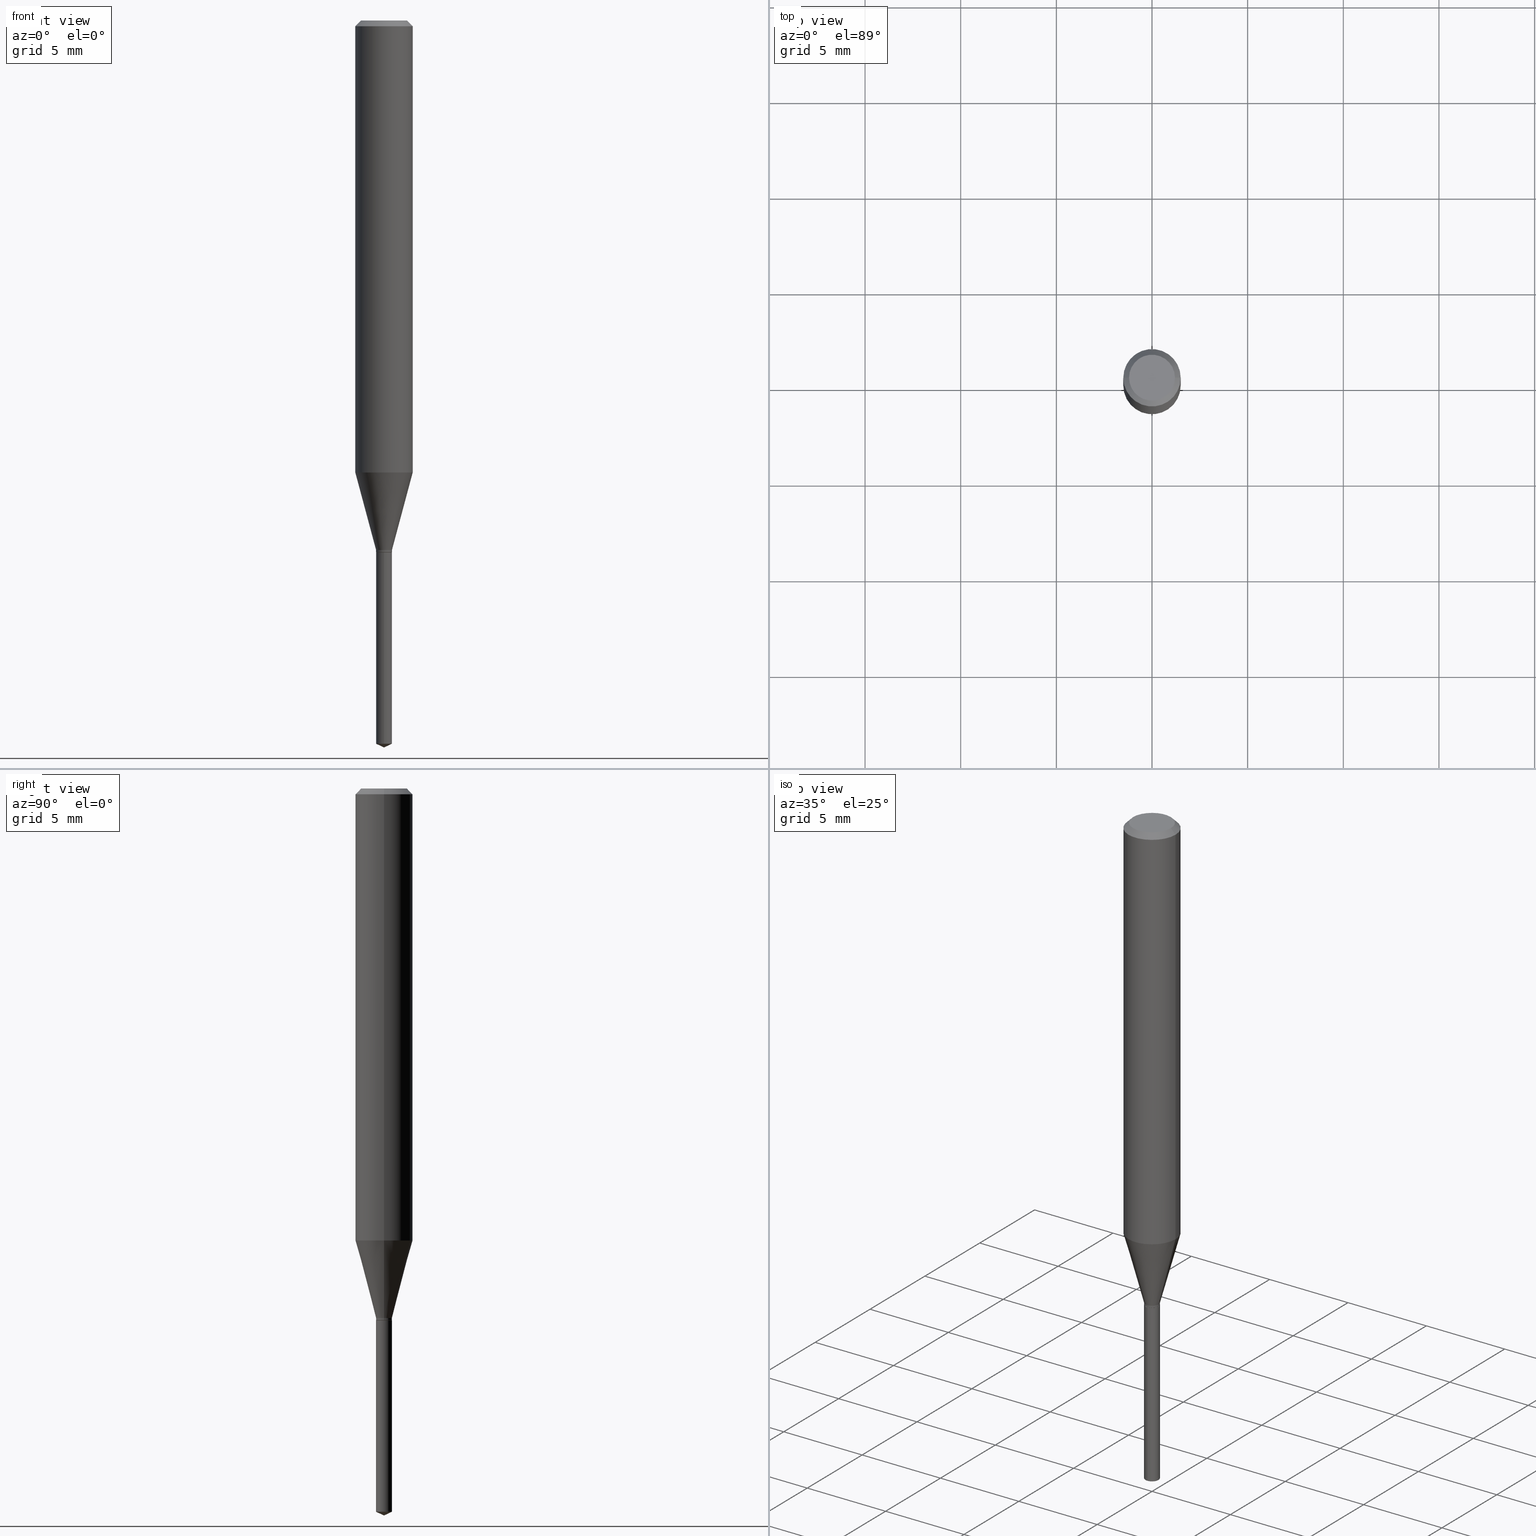
[diagram: canonical four-view strip — front | top / right | iso, engineering-drawing reading convention]
A machine part, canonical four-view strip (front | top / right | iso — engineering-drawing reading convention). The complete STEP part file that produces these views, byte-faithful:
ISO-10303-21;
HEADER;
FILE_DESCRIPTION (( 'STEP AP203' ),
    '1' );
FILE_NAME ('08126.STEP',
    '2024-04-24T12:21:54',
    ( '' ),
    ( '' ),
    'SwSTEP 2.0',
    'SolidWorks 2023',
    '' );
FILE_SCHEMA (( 'CONFIG_CONTROL_DESIGN' ));
ENDSEC;

DATA;
#1 = EDGE_CURVE ( 'NONE', #224, #394, #177, .T. ) ;
#2 = CARTESIAN_POINT ( 'NONE',  ( -0.01584999999999999951, -3.706156074571735474E-15, -1.094500000000000028 ) ) ;
#3 = CARTESIAN_POINT ( 'NONE',  ( 0.05905000000000010935, -3.660264541385565561E-15, -0.9302414305168089648 ) ) ;
#4 = VECTOR ( 'NONE', #127, 39.37007874015748143 ) ;
#5 = APPROVAL_DATE_TIME ( #424, #60 ) ;
#6 = CARTESIAN_POINT ( 'NONE',  ( 2.675342873966538993E-29, -3.819680584694400481E-15, -1.093999999999999861 ) ) ;
#7 = EDGE_CURVE ( 'NONE', #207, #450, #404, .T. ) ;
#8 = PERSON_AND_ORGANIZATION_ROLE ( 'design_supplier' ) ;
#9 = ORIENTED_EDGE ( 'NONE', *, *, #90, .F. ) ;
#10 = ORIENTED_EDGE ( 'NONE', *, *, #69, .T. ) ;
#11 = ORIENTED_EDGE ( 'NONE', *, *, #383, .F. ) ;
#12 = CIRCLE ( 'NONE', #214, 0.04724000000000000421 ) ;
#13 = SHAPE_DEFINITION_REPRESENTATION ( #310, #227 ) ;
#14 = DIRECTION ( 'NONE',  ( -6.328713451373386733E-15, -0.9063077870366508249, 0.4226182617406975539 ) ) ;
#15 = EDGE_LOOP ( 'NONE', ( #54, #438, #294, #364 ) ) ;
#16 = APPROVAL ( #427, 'UNSPECIFIED' ) ;
#17 = LINE ( 'NONE', #279, #449 ) ;
#18 = ORIENTED_EDGE ( 'NONE', *, *, #414, .F. ) ;
#19 = ORIENTED_EDGE ( 'NONE', *, *, #370, .F. ) ;
#20 = APPLICATION_CONTEXT ( 'configuration controlled 3d designs of mechanical parts and assemblies' ) ;
#21 = DIRECTION ( 'NONE',  ( 1.000000000000000000, -6.982962677686270655E-15, 0.000000000000000000 ) ) ;
#22 = ORIENTED_EDGE ( 'NONE', *, *, #483, .T. ) ;
#23 = AXIS2_PLACEMENT_3D ( 'NONE', #137, #324, #74 ) ;
#24 = DIRECTION ( 'NONE',  ( -2.445468806185136597E-29, 3.491481338843145583E-15, 1.000000000000000000 ) ) ;
#25 = PRODUCT_RELATED_PRODUCT_CATEGORY ( 'detail', '', ( #388 ) ) ;
#26 = ORIENTED_EDGE ( 'NONE', *, *, #231, .T. ) ;
#27 = DIRECTION ( 'NONE',  ( -2.445468806185136597E-29, 3.491481338843145583E-15, 1.000000000000000000 ) ) ;
#28 = DIRECTION ( 'NONE',  ( -2.445468806185136597E-29, 3.491481338843145583E-15, 1.000000000000000000 ) ) ;
#29 = VECTOR ( 'NONE', #353, 39.37007874015747433 ) ;
#30 = CARTESIAN_POINT ( 'NONE',  ( 2.888098660104663328E-31, -4.123439461173779030E-17, -0.01181000000000006871 ) ) ;
#31 = CIRCLE ( 'NONE', #220, 0.04724000000000000421 ) ;
#32 = EDGE_CURVE ( 'NONE', #44, #183, #385, .T. ) ;
#33 = CARTESIAN_POINT ( 'NONE',  ( 8.265746106709734507E-48, -1.180129479067563789E-33, -3.380025165646692144E-19 ) ) ;
#34 = VERTEX_POINT ( 'NONE', #121 ) ;
#35 = ORIENTED_EDGE ( 'NONE', *, *, #182, .F. ) ;
#36 = CARTESIAN_POINT ( 'NONE',  ( -0.01634999999999999995, -3.688144329506715042E-15, -1.089600000000000124 ) ) ;
#37 = DIRECTION ( 'NONE',  ( -2.445468806185136877E-29, 3.491481338843145188E-15, 1.000000000000000000 ) ) ;
#38 = ORIENTED_EDGE ( 'NONE', *, *, #470, .T. ) ;
#39 = CIRCLE ( 'NONE', #23, 0.05905000000000010935 ) ;
#40 = CC_DESIGN_PERSON_AND_ORGANIZATION_ASSIGNMENT ( #311, #352, ( #221 ) ) ;
#41 = APPLICATION_PROTOCOL_DEFINITION ( 'international standard', 'config_control_design', 1994, #331 ) ;
#42 = DIRECTION ( 'NONE',  ( -2.445468806185136597E-29, 3.491481338843145583E-15, 1.000000000000000000 ) ) ;
#43 = DIRECTION ( 'NONE',  ( -2.445460715294871217E-29, 3.491492925458510144E-15, 1.000000000000000000 ) ) ;
#44 = VERTEX_POINT ( 'NONE', #49 ) ;
#45 = CALENDAR_DATE ( 2024, 24, 4 ) ;
#46 = CC_DESIGN_PERSON_AND_ORGANIZATION_ASSIGNMENT ( #236, #8, ( #187 ) ) ;
#47 = LINE ( 'NONE', #277, #327 ) ;
#48 = CIRCLE ( 'NONE', #358, 0.05905000000000010935 ) ;
#49 = CARTESIAN_POINT ( 'NONE',  ( 1.161737372968127416E-16, 0.01634999999999479925, -1.488475869789165795 ) ) ;
#50 = DESIGN_CONTEXT ( 'detailed design', #331, 'design' ) ;
#51 = LINE ( 'NONE', #240, #29 ) ;
#52 = DIRECTION ( 'NONE',  ( 1.000000000000000000, -6.982962677686269077E-15, 0.000000000000000000 ) ) ;
#53 = CIRCLE ( 'NONE', #395, 0.01634999999999999995 ) ;
#54 = ORIENTED_EDGE ( 'NONE', *, *, #96, .F. ) ;
#55 = LOCAL_TIME ( 8, 21, 54.00000000000000000, #193 ) ;
#56 = DIRECTION ( 'NONE',  ( 2.438088387897960049E-29, -3.491481338843145188E-15, -1.000000000000000000 ) ) ;
#57 = ORIENTED_EDGE ( 'NONE', *, *, #175, .T. ) ;
#58 = CARTESIAN_POINT ( 'NONE',  ( 2.664582811219324806E-29, -3.804318066803491249E-15, -1.089600000000000124 ) ) ;
#59 = VERTEX_POINT ( 'NONE', #418 ) ;
#60 = APPROVAL ( #422, 'UNSPECIFIED' ) ;
#61 = FACE_OUTER_BOUND ( 'NONE', #185, .T. ) ;
#62 = ORIENTED_EDGE ( 'NONE', *, *, #208, .F. ) ;
#63 = ORIENTED_EDGE ( 'NONE', *, *, #370, .T. ) ;
#64 = AXIS2_PLACEMENT_3D ( 'NONE', #234, #113, #302 ) ;
#65 = DIRECTION ( 'NONE',  ( -2.445468806185136597E-29, 3.491481338843145583E-15, 1.000000000000000000 ) ) ;
#66 = DIRECTION ( 'NONE',  ( -6.982962677686265922E-15, -1.000000000000000000, 0.000000000000000000 ) ) ;
#67 = VERTEX_POINT ( 'NONE', #2 ) ;
#68 = DIRECTION ( 'NONE',  ( 6.982962677686265922E-15, 1.000000000000000000, -3.491492925458510144E-15 ) ) ;
#69 = EDGE_CURVE ( 'NONE', #394, #145, #51, .T. ) ;
#70 = DIRECTION ( 'NONE',  ( -2.445468806185136597E-29, 3.491481338843145583E-15, 1.000000000000000000 ) ) ;
#71 = AXIS2_PLACEMENT_3D ( 'NONE', #105, #176, #260 ) ;
#72 = VERTEX_POINT ( 'NONE', #160 ) ;
#73 = VERTEX_POINT ( 'NONE', #200 ) ;
#74 = DIRECTION ( 'NONE',  ( 1.000000000000000000, -6.982962677686267499E-15, 0.000000000000000000 ) ) ;
#75 = ORIENTED_EDGE ( 'NONE', *, *, #462, .F. ) ;
#76 = CARTESIAN_POINT ( 'NONE',  ( 0.01634999999999999648, -3.933852024474571547E-15, -1.093999999999999861 ) ) ;
#77 = DIRECTION ( 'NONE',  ( -1.000000000000000000, 6.982962677686266711E-15, 0.000000000000000000 ) ) ;
#78 = AXIS2_PLACEMENT_3D ( 'NONE', #58, #209, #98 ) ;
#79 = COORDINATED_UNIVERSAL_TIME_OFFSET ( 5, 0, .BEHIND. ) ;
#80 = DIRECTION ( 'NONE',  ( -0.7071067811865453523, 2.468850131082234184E-15, -0.7071067811865496822 ) ) ;
#81 = ORIENTED_EDGE ( 'NONE', *, *, #362, .F. ) ;
#82 = APPROVAL_ROLE ( '' ) ;
#83 = DIRECTION ( 'NONE',  ( -6.982962677686265922E-15, -1.000000000000000000, 0.000000000000000000 ) ) ;
#84 = PERSON_AND_ORGANIZATION_ROLE ( 'creator' ) ;
#85 = LINE ( 'NONE', #303, #256 ) ;
#86 = CLOSED_SHELL ( 'NONE', ( #146, #447, #428, #111, #398 ) ) ;
#87 = AXIS2_PLACEMENT_3D ( 'NONE', #89, #65, #133 ) ;
#88 = DIRECTION ( 'NONE',  ( -6.982962677686265922E-15, -1.000000000000000000, 0.000000000000000000 ) ) ;
#89 = CARTESIAN_POINT ( 'NONE',  ( 0.000000000000000000, 0.000000000000000000, 0.000000000000000000 ) ) ;
#90 = EDGE_CURVE ( 'NONE', #67, #402, #194, .T. ) ;
#91 = DATE_TIME_ROLE ( 'classification_date' ) ;
#92 = DIRECTION ( 'NONE',  ( -2.445460715294871217E-29, 3.491492925458510144E-15, 1.000000000000000000 ) ) ;
#93 = VECTOR ( 'NONE', #37, 39.37007874015748143 ) ;
#94 = PLANE ( 'NONE',  #148 ) ;
#95 = ORIENTED_EDGE ( 'NONE', *, *, #476, .F. ) ;
#96 = EDGE_CURVE ( 'NONE', #207, #224, #47, .T. ) ;
#97 = COORDINATED_UNIVERSAL_TIME_OFFSET ( 5, 0, .BEHIND. ) ;
#98 = DIRECTION ( 'NONE',  ( 1.000000000000000000, -6.982962677686270655E-15, 0.000000000000000000 ) ) ;
#99 = EDGE_LOOP ( 'NONE', ( #81, #471, #10, #334 ) ) ;
#100 = DIMENSIONAL_EXPONENTS ( 1.000000000000000000, 0.000000000000000000, 0.000000000000000000, 0.000000000000000000, 0.000000000000000000, 0.000000000000000000, 0.000000000000000000 ) ;
#101 = DIRECTION ( 'NONE',  ( -2.445468806185136877E-29, 3.491481338843145188E-15, 1.000000000000000000 ) ) ;
#102 = ORIENTED_EDGE ( 'NONE', *, *, #156, .T. ) ;
#103 = AXIS2_PLACEMENT_3D ( 'NONE', #354, #230, #88 ) ;
#104 = APPROVAL_PERSON_ORGANIZATION ( #241, #60, #82 ) ;
#105 = CARTESIAN_POINT ( 'NONE',  ( 2.888098660104663328E-31, -4.123439461173779030E-17, -0.01181000000000006871 ) ) ;
#106 = DIRECTION ( 'NONE',  ( -0.2588190451025213501, 5.211531920934551042E-15, 0.9659258262890682012 ) ) ;
#107 = CC_DESIGN_PERSON_AND_ORGANIZATION_ASSIGNMENT ( #159, #84, ( #187 ) ) ;
#108 = PLANE ( 'NONE',  #432 ) ;
#109 = FACE_OUTER_BOUND ( 'NONE', #270, .T. ) ;
#110 = AXIS2_PLACEMENT_3D ( 'NONE', #326, #410, #376 ) ;
#111 = ADVANCED_FACE ( 'NONE', ( #233 ), #114, .T. ) ;
#112 = CARTESIAN_POINT ( 'NONE',  ( 0.01584999999999999951, -3.932106283805150044E-15, -1.094500000000000028 ) ) ;
#113 = DIRECTION ( 'NONE',  ( 0.000000000000000000, 0.000000000000000000, 1.000000000000000000 ) ) ;
#114 = CYLINDRICAL_SURFACE ( 'NONE', #103, 0.01634999999999999995 ) ;
#115 = APPROVAL_ROLE ( '' ) ;
#116 = AXIS2_PLACEMENT_3D ( 'NONE', #163, #42, #350 ) ;
#117 = APPROVAL_PERSON_ORGANIZATION ( #243, #199, #245 ) ;
#118 = EDGE_LOOP ( 'NONE', ( #325, #38, #123, #62 ) ) ;
#119 = CYLINDRICAL_SURFACE ( 'NONE', #202, 0.01634999999999999995 ) ;
#120 = ADVANCED_FACE ( 'NONE', ( #242 ), #339, .T. ) ;
#121 = CARTESIAN_POINT ( 'NONE',  ( 0.05904999999999999832, -4.535783407291118600E-16, -0.01181000000000006871 ) ) ;
#122 = DIRECTION ( 'NONE',  ( -0.7071067811864237829, 7.493145998869907665E-15, 0.7071067811866712516 ) ) ;
#123 = ORIENTED_EDGE ( 'NONE', *, *, #462, .T. ) ;
#124 = CONICAL_SURFACE ( 'NONE', #486, 0.01634999999999999995, 0.2617993877991500740 ) ;
#125 = ORGANIZATION ( 'UNSPECIFIED', 'UNSPECIFIED', '' ) ;
#126 = EDGE_CURVE ( 'NONE', #317, #59, #381, .T. ) ;
#127 = DIRECTION ( 'NONE',  ( -2.445468806185136877E-29, 3.491481338843145188E-15, 1.000000000000000000 ) ) ;
#128 = CARTESIAN_POINT ( 'NONE',  ( -0.01634999999999999995, -3.695825588452169658E-15, -1.089600000000000124 ) ) ;
#129 = FACE_OUTER_BOUND ( 'NONE', #342, .T. ) ;
#130 = EDGE_CURVE ( 'NONE', #205, #73, #85, .T. ) ;
#131 = EDGE_LOOP ( 'NONE', ( #434, #271, #406, #298 ) ) ;
#132 = CIRCLE ( 'NONE', #299, 0.01634999999999999995 ) ;
#133 = DIRECTION ( 'NONE',  ( 1.000000000000000000, -6.982962677686266711E-15, 4.876176775795935793E-29 ) ) ;
#134 = ORIENTED_EDGE ( 'NONE', *, *, #355, .F. ) ;
#135 = CARTESIAN_POINT ( 'NONE',  ( 2.664582811219324806E-29, -3.804318066803491249E-15, -1.089600000000000124 ) ) ;
#136 = ORIENTED_EDGE ( 'NONE', *, *, #453, .T. ) ;
#137 = CARTESIAN_POINT ( 'NONE',  ( 2.274876400549894550E-29, -3.247920595268191429E-15, -0.9302414305168089648 ) ) ;
#138 = ORIENTED_EDGE ( 'NONE', *, *, #408, .F. ) ;
#139 = VECTOR ( 'NONE', #389, 39.37007874015748143 ) ;
#140 = AXIS2_PLACEMENT_3D ( 'NONE', #218, #28, #485 ) ;
#141 = EDGE_CURVE ( 'NONE', #72, #44, #382, .T. ) ;
#142 = DIRECTION ( 'NONE',  ( 1.000000000000000000, -6.982962677686267499E-15, 0.000000000000000000 ) ) ;
#143 = CARTESIAN_POINT ( 'NONE',  ( 0.01584999999999999951, -3.932106283805150044E-15, -1.094500000000000028 ) ) ;
#144 = DIRECTION ( 'NONE',  ( -6.982962677686266711E-15, -1.000000000000000000, 3.520397390770418371E-15 ) ) ;
#145 = VERTEX_POINT ( 'NONE', #3 ) ;
#146 = ADVANCED_FACE ( 'NONE', ( #158 ), #119, .T. ) ;
#147 = CC_DESIGN_APPROVAL ( #199, ( #379 ) ) ;
#148 = AXIS2_PLACEMENT_3D ( 'NONE', #401, #56, #323 ) ;
#149 = CARTESIAN_POINT ( 'NONE',  ( -9.261931828548885815E-28, 1.322367415117763772E-13, 37.87397874015748300 ) ) ;
#150 = COORDINATED_UNIVERSAL_TIME_OFFSET ( 5, 0, .BEHIND. ) ;
#151 = MECHANICAL_CONTEXT ( 'NONE', #20, 'mechanical' ) ;
#152 = DIRECTION ( 'NONE',  ( -2.445460715294871217E-29, 3.491492925458510144E-15, 1.000000000000000000 ) ) ;
#153 = MANIFOLD_SOLID_BREP ( 'Body-Move/Copy2[1]', #86 ) ;
#154 =( NAMED_UNIT ( * ) PLANE_ANGLE_UNIT ( ) SI_UNIT ( $, .RADIAN. ) );
#155 = VECTOR ( 'NONE', #152, 39.37007874015748143 ) ;
#156 = EDGE_CURVE ( 'NONE', #72, #317, #235, .T. ) ;
#157 = CIRCLE ( 'NONE', #291, 0.01634999999999999648 ) ;
#158 = FACE_OUTER_BOUND ( 'NONE', #180, .T. ) ;
#159 = PERSON_AND_ORGANIZATION ( #351, #125 ) ;
#160 = CARTESIAN_POINT ( 'NONE',  ( 3.658653776152655930E-29, -5.223622565778476142E-15, -1.496099999999999985 ) ) ;
#161 = EDGE_LOOP ( 'NONE', ( #63, #26, #18, #75 ) ) ;
#162 = EDGE_CURVE ( 'NONE', #317, #44, #212, .T. ) ;
#163 = CARTESIAN_POINT ( 'NONE',  ( 2.664582811219324806E-29, -3.804318066803491249E-15, -1.089600000000000124 ) ) ;
#164 = LOCAL_TIME ( 8, 21, 54.00000000000000000, #150 ) ;
#165 = DIRECTION ( 'NONE',  ( -2.445468806185136597E-29, 3.491481338843145583E-15, 1.000000000000000000 ) ) ;
#166 = CARTESIAN_POINT ( 'NONE',  ( 3.640018120713164370E-29, -5.196990287534057900E-15, -1.488475869789165795 ) ) ;
#167 = EDGE_LOOP ( 'NONE', ( #223, #169, #335, #391 ) ) ;
#168 = FACE_OUTER_BOUND ( 'NONE', #15, .T. ) ;
#169 = ORIENTED_EDGE ( 'NONE', *, *, #338, .T. ) ;
#170 = CIRCLE ( 'NONE', #465, 0.05904999999999999832 ) ;
#171 = CARTESIAN_POINT ( 'NONE',  ( 2.676565608369631794E-29, -3.821426325363822773E-15, -1.094499999999999806 ) ) ;
#172 = ORIENTED_EDGE ( 'NONE', *, *, #141, .F. ) ;
#173 = DIRECTION ( 'NONE',  ( -2.445460715294871217E-29, 3.491492925458510144E-15, 1.000000000000000000 ) ) ;
#174 = ORIENTED_EDGE ( 'NONE', *, *, #362, .T. ) ;
#175 = EDGE_CURVE ( 'NONE', #394, #224, #53, .T. ) ;
#176 = DIRECTION ( 'NONE',  ( 2.445468806185136597E-29, -3.491481338843145583E-15, -1.000000000000000000 ) ) ;
#177 = CIRCLE ( 'NONE', #116, 0.01634999999999999995 ) ;
#178 = LOCAL_TIME ( 8, 21, 54.00000000000000000, #97 ) ;
#179 = DIRECTION ( 'NONE',  ( 0.7071067811864237829, -2.468850131080960568E-15, 0.7071067811866712516 ) ) ;
#180 = EDGE_LOOP ( 'NONE', ( #441, #284, #35, #367 ) ) ;
#181 = DIRECTION ( 'NONE',  ( -2.445468806185136597E-29, 3.491481338843145583E-15, 1.000000000000000000 ) ) ;
#182 = EDGE_CURVE ( 'NONE', #59, #183, #247, .T. ) ;
#183 = VERTEX_POINT ( 'NONE', #440 ) ;
#184 = DIRECTION ( 'NONE',  ( -2.445468806185136597E-29, 3.491481338843145583E-15, 1.000000000000000000 ) ) ;
#185 = EDGE_LOOP ( 'NONE', ( #322, #136 ) ) ;
#186 = PERSON_AND_ORGANIZATION_ROLE ( 'classification_officer' ) ;
#187 = PRODUCT_DEFINITION_FORMATION_WITH_SPECIFIED_SOURCE ( 'ANY', '', #388, .NOT_KNOWN. ) ;
#188 = CARTESIAN_POINT ( 'NONE',  ( -0.01584999999999999951, -3.708805301745847464E-15, -1.094500000000000028 ) ) ;
#189 = CARTESIAN_POINT ( 'NONE',  ( 1.161737372968031274E-16, 0.01634999999999617662, -1.094499999999999806 ) ) ;
#190 = ADVANCED_FACE ( 'NONE', ( #400 ), #124, .T. ) ;
#191 = DIRECTION ( 'NONE',  ( -6.982962677686265922E-15, -1.000000000000000000, 0.000000000000000000 ) ) ;
#192 = CARTESIAN_POINT ( 'NONE',  ( 3.658671642415649744E-29, -5.223597202677443246E-15, -1.496099999999999985 ) ) ;
#193 = COORDINATED_UNIVERSAL_TIME_OFFSET ( 5, 0, .BEHIND. ) ;
#194 = CIRCLE ( 'NONE', #304, 0.01584999999999999951 ) ;
#195 = VECTOR ( 'NONE', #179, 39.37007874015748143 ) ;
#196 = CARTESIAN_POINT ( 'NONE',  ( 3.658653776152657051E-29, -5.223622565778476142E-15, -1.496099999999999985 ) ) ;
#197 =( NAMED_UNIT ( * ) SI_UNIT ( $, .STERADIAN. ) SOLID_ANGLE_UNIT ( ) );
#198 = ORIENTED_EDGE ( 'NONE', *, *, #7, .F. ) ;
#199 = APPROVAL ( #254, 'UNSPECIFIED' ) ;
#200 = CARTESIAN_POINT ( 'NONE',  ( -0.05904999999999999832, -1.225002009473624692E-15, -0.01181000000000006871 ) ) ;
#201 = FACE_OUTER_BOUND ( 'NONE', #118, .T. ) ;
#202 = AXIS2_PLACEMENT_3D ( 'NONE', #309, #425, #83 ) ;
#203 = AXIS2_PLACEMENT_3D ( 'NONE', #461, #266, #77 ) ;
#204 = CONICAL_SURFACE ( 'NONE', #283, 0.01584999999999999951, 0.7853981633972733079 ) ;
#205 = VERTEX_POINT ( 'NONE', #255 ) ;
#206 = DIRECTION ( 'NONE',  ( -2.445468806185136597E-29, 3.491481338843145583E-15, 1.000000000000000000 ) ) ;
#207 = VERTEX_POINT ( 'NONE', #314 ) ;
#208 = EDGE_CURVE ( 'NONE', #73, #34, #411, .T. ) ;
#209 = DIRECTION ( 'NONE',  ( -2.445468806185136597E-29, 3.491481338843145583E-15, 1.000000000000000000 ) ) ;
#210 = EDGE_LOOP ( 'NONE', ( #490, #332, #11, #488 ) ) ;
#211 = DIRECTION ( 'NONE',  ( -6.982962677686265922E-15, -1.000000000000000000, 0.000000000000000000 ) ) ;
#212 = CIRCLE ( 'NONE', #267, 0.01634999999999999995 ) ;
#213 = ORIENTED_EDGE ( 'NONE', *, *, #295, .F. ) ;
#214 = AXIS2_PLACEMENT_3D ( 'NONE', #430, #206, #363 ) ;
#215 = CARTESIAN_POINT ( 'NONE',  ( 0.01634999999999999648, -1.141714397801704256E-16, 7.972549028426353368E-31 ) ) ;
#216 = CC_DESIGN_PERSON_AND_ORGANIZATION_ASSIGNMENT ( #390, #186, ( #379 ) ) ;
#217 = ORIENTED_EDGE ( 'NONE', *, *, #355, .T. ) ;
#218 = CARTESIAN_POINT ( 'NONE',  ( 2.676565608369632355E-29, -3.821426325363822773E-15, -1.094500000000000028 ) ) ;
#219 = DIRECTION ( 'NONE',  ( -2.445468806185136597E-29, 3.491481338843145583E-15, 1.000000000000000000 ) ) ;
#220 = AXIS2_PLACEMENT_3D ( 'NONE', #33, #181, #484 ) ;
#221 = PRODUCT_DEFINITION ( 'UNKNOWN', '', #187, #50 ) ;
#222 = DIRECTION ( 'NONE',  ( 0.7071067811865453523, -7.319954787623248157E-15, -0.7071067811865496822 ) ) ;
#223 = ORIENTED_EDGE ( 'NONE', *, *, #453, .F. ) ;
#224 = VERTEX_POINT ( 'NONE', #128 ) ;
#225 = CARTESIAN_POINT ( 'NONE',  ( 2.274876400549894550E-29, -3.247920595268191429E-15, -0.9302414305168089648 ) ) ;
#226 = ORIENTED_EDGE ( 'NONE', *, *, #483, .F. ) ;
#227 = ADVANCED_BREP_SHAPE_REPRESENTATION ( '08126', ( #153, #315, #64 ), #487 ) ;
#228 = CARTESIAN_POINT ( 'NONE',  ( 0.05905000000000005383, -4.123439461173744271E-16, 2.879382386107502672E-30 ) ) ;
#229 = CARTESIAN_POINT ( 'NONE',  ( 3.640018120713164370E-29, -5.196990287534057900E-15, -1.488475869789165795 ) ) ;
#230 = DIRECTION ( 'NONE',  ( -2.445460715294871217E-29, 3.491492925458510144E-15, 1.000000000000000000 ) ) ;
#231 = EDGE_CURVE ( 'NONE', #416, #73, #17, .T. ) ;
#232 = DATE_TIME_ROLE ( 'creation_date' ) ;
#233 = FACE_OUTER_BOUND ( 'NONE', #288, .T. ) ;
#234 = CARTESIAN_POINT ( 'NONE',  ( 0.000000000000000000, 0.000000000000000000, 0.000000000000000000 ) ) ;
#235 = LINE ( 'NONE', #196, #479 ) ;
#236 = PERSON_AND_ORGANIZATION ( #351, #125 ) ;
#237 = ADVANCED_FACE ( 'NONE', ( #129 ), #261, .T. ) ;
#238 = AXIS2_PLACEMENT_3D ( 'NONE', #281, #27, #52 ) ;
#239 = AXIS2_PLACEMENT_3D ( 'NONE', #446, #374, #417 ) ;
#240 = CARTESIAN_POINT ( 'NONE',  ( 0.01634999999999999995, -3.918489506583662316E-15, -1.089600000000000124 ) ) ;
#241 = PERSON_AND_ORGANIZATION ( #351, #125 ) ;
#242 = FACE_OUTER_BOUND ( 'NONE', #167, .T. ) ;
#243 = PERSON_AND_ORGANIZATION ( #351, #125 ) ;
#244 = CYLINDRICAL_SURFACE ( 'NONE', #320, 0.01634999999999999648 ) ;
#245 = APPROVAL_ROLE ( '' ) ;
#246 = FACE_OUTER_BOUND ( 'NONE', #161, .T. ) ;
#247 = CIRCLE ( 'NONE', #282, 0.01634999999999999995 ) ;
#248 = ADVANCED_FACE ( 'NONE', ( #168 ), #318, .T. ) ;
#249 = FACE_OUTER_BOUND ( 'NONE', #253, .T. ) ;
#250 = ORIENTED_EDGE ( 'NONE', *, *, #96, .T. ) ;
#251 = CALENDAR_DATE ( 2024, 24, 4 ) ;
#252 = CYLINDRICAL_SURFACE ( 'NONE', #426, 0.05905000000000005383 ) ;
#253 = EDGE_LOOP ( 'NONE', ( #57, #174, #19, #312 ) ) ;
#254 = APPROVAL_STATUS ( 'not_yet_approved' ) ;
#255 = CARTESIAN_POINT ( 'NONE',  ( -0.04724000000000000421, 3.504923541997677355E-16, -3.380025165670481712E-19 ) ) ;
#256 = VECTOR ( 'NONE', #80, 39.37007874015748143 ) ;
#257 = EDGE_LOOP ( 'NONE', ( #399, #250, #290, #213 ) ) ;
#258 = CARTESIAN_POINT ( 'NONE',  ( 2.676565608369632355E-29, -3.821426325363822773E-15, -1.094500000000000028 ) ) ;
#259 = FACE_OUTER_BOUND ( 'NONE', #131, .T. ) ;
#260 = DIRECTION ( 'NONE',  ( -1.000000000000000000, 6.982962677686266711E-15, 0.000000000000000000 ) ) ;
#261 = CONICAL_SURFACE ( 'NONE', #238, 0.01584999999999999951, 0.7853981633972733079 ) ;
#262 = CONICAL_SURFACE ( 'NONE', #78, 0.01634999999999999995, 0.2617993877991500740 ) ;
#263 = CARTESIAN_POINT ( 'NONE',  ( 0.04724000000000000421, -3.852183633974369345E-16, -3.380025165621689721E-19 ) ) ;
#264 = LINE ( 'NONE', #36, #444 ) ;
#265 = CC_DESIGN_DATE_AND_TIME_ASSIGNMENT ( #489, #232, ( #221 ) ) ;
#266 = DIRECTION ( 'NONE',  ( 2.445468806185136597E-29, -3.491481338843145583E-15, -1.000000000000000000 ) ) ;
#267 = AXIS2_PLACEMENT_3D ( 'NONE', #166, #173, #316 ) ;
#268 = COORDINATED_UNIVERSAL_TIME_OFFSET ( 5, 0, .BEHIND. ) ;
#269 = APPROVAL_PERSON_ORGANIZATION ( #341, #16, #115 ) ;
#270 = EDGE_LOOP ( 'NONE', ( #172, #102, #226 ) ) ;
#271 = ORIENTED_EDGE ( 'NONE', *, *, #308, .F. ) ;
#272 = ADVANCED_FACE ( 'NONE', ( #201 ), #252, .T. ) ;
#273 = PERSON_AND_ORGANIZATION ( #351, #125 ) ;
#274 = ORIENTED_EDGE ( 'NONE', *, *, #156, .F. ) ;
#275 =( CONVERSION_BASED_UNIT ( 'INCH', #459 ) LENGTH_UNIT ( ) NAMED_UNIT ( #100 ) );
#276 = CC_DESIGN_APPROVAL ( #16, ( #221 ) ) ;
#277 = CARTESIAN_POINT ( 'NONE',  ( -0.01634999999999999648, 1.161737372967763554E-16, -8.042458872566769714E-31 ) ) ;
#278 = DIRECTION ( 'NONE',  ( 1.000000000000000000, -6.982962677686265922E-15, 4.876176775795935793E-29 ) ) ;
#279 = CARTESIAN_POINT ( 'NONE',  ( -0.05905000000000005383, 4.195754854663395423E-16, -2.904631170795524694E-30 ) ) ;
#280 = ADVANCED_FACE ( 'NONE', ( #61 ), #94, .F. ) ;
#281 = CARTESIAN_POINT ( 'NONE',  ( 2.676565608369632355E-29, -3.821426325363822773E-15, -1.094500000000000028 ) ) ;
#282 = AXIS2_PLACEMENT_3D ( 'NONE', #171, #92, #211 ) ;
#283 = AXIS2_PLACEMENT_3D ( 'NONE', #258, #70, #330 ) ;
#284 = ORIENTED_EDGE ( 'NONE', *, *, #32, .T. ) ;
#285 = DIRECTION ( 'NONE',  ( 1.000000000000000000, -6.982962677686266711E-15, 0.000000000000000000 ) ) ;
#286 = ADVANCED_FACE ( 'NONE', ( #246 ), #403, .T. ) ;
#287 = DIRECTION ( 'NONE',  ( -2.445468806185136597E-29, 3.491481338843145583E-15, 1.000000000000000000 ) ) ;
#288 = EDGE_LOOP ( 'NONE', ( #375, #22, #421, #134 ) ) ;
#289 = DIRECTION ( 'NONE',  ( -2.445468806185136597E-29, 3.491481338843145583E-15, 1.000000000000000000 ) ) ;
#290 = ORIENTED_EDGE ( 'NONE', *, *, #175, .F. ) ;
#291 = AXIS2_PLACEMENT_3D ( 'NONE', #445, #219, #407 ) ;
#292 = LINE ( 'NONE', #378, #456 ) ;
#293 = FACE_OUTER_BOUND ( 'NONE', #337, .T. ) ;
#294 = ORIENTED_EDGE ( 'NONE', *, *, #295, .T. ) ;
#295 = EDGE_CURVE ( 'NONE', #450, #394, #473, .T. ) ;
#296 = UNCERTAINTY_MEASURE_WITH_UNIT (LENGTH_MEASURE( 1.000000000000000082E-05 ), #275, 'distance_accuracy_value', 'NONE');
#297 = DIRECTION ( 'NONE',  ( -2.445460715294871217E-29, 3.491492925458510144E-15, 1.000000000000000000 ) ) ;
#298 = ORIENTED_EDGE ( 'NONE', *, *, #208, .T. ) ;
#299 = AXIS2_PLACEMENT_3D ( 'NONE', #229, #43, #191 ) ;
#300 = DIRECTION ( 'NONE',  ( -2.445460715294871217E-29, 3.491492925458510144E-15, 1.000000000000000000 ) ) ;
#301 = ADVANCED_FACE ( 'NONE', ( #361 ), #244, .T. ) ;
#302 = DIRECTION ( 'NONE',  ( 1.000000000000000000, 0.000000000000000000, 0.000000000000000000 ) ) ;
#303 = CARTESIAN_POINT ( 'NONE',  ( -0.05904999999999999832, 3.711095515056362547E-16, -0.01181000000000006871 ) ) ;
#304 = AXIS2_PLACEMENT_3D ( 'NONE', #313, #458, #464 ) ;
#305 = LOCAL_TIME ( 8, 21, 54.00000000000000000, #268 ) ;
#306 = PERSON_AND_ORGANIZATION_ROLE ( 'design_owner' ) ;
#307 = DIRECTION ( 'NONE',  ( 1.000000000000000000, -6.982962677686272233E-15, 0.000000000000000000 ) ) ;
#308 = EDGE_CURVE ( 'NONE', #205, #460, #12, .T. ) ;
#309 = CARTESIAN_POINT ( 'NONE',  ( 2.676565608369631794E-29, -3.821426325363822773E-15, -1.094499999999999806 ) ) ;
#310 = PRODUCT_DEFINITION_SHAPE ( 'NONE', 'NONE',  #221 ) ;
#311 = PERSON_AND_ORGANIZATION ( #351, #125 ) ;
#312 = ORIENTED_EDGE ( 'NONE', *, *, #69, .F. ) ;
#313 = CARTESIAN_POINT ( 'NONE',  ( 2.676565608369632355E-29, -3.821426325363822773E-15, -1.094500000000000028 ) ) ;
#314 = CARTESIAN_POINT ( 'NONE',  ( -0.01634999999999999648, -3.695825588452169658E-15, -1.093999999999999861 ) ) ;
#315 = MANIFOLD_SOLID_BREP ( 'Body-Move/Copy2[2]', #357 ) ;
#316 = DIRECTION ( 'NONE',  ( -6.982962677686265922E-15, -1.000000000000000000, 0.000000000000000000 ) ) ;
#317 = VERTEX_POINT ( 'NONE', #359 ) ;
#318 = CYLINDRICAL_SURFACE ( 'NONE', #366, 0.01634999999999999648 ) ;
#319 = AXIS2_PLACEMENT_3D ( 'NONE', #6, #423, #307 ) ;
#320 = AXIS2_PLACEMENT_3D ( 'NONE', #368, #437, #278 ) ;
#321 = ADVANCED_FACE ( 'NONE', ( #249 ), #262, .T. ) ;
#322 = ORIENTED_EDGE ( 'NONE', *, *, #308, .T. ) ;
#323 = DIRECTION ( 'NONE',  ( -1.000000000000000000, 6.982962677686265922E-15, -4.876176775795935793E-29 ) ) ;
#324 = DIRECTION ( 'NONE',  ( -2.445468806185136597E-29, 3.491481338843145583E-15, 1.000000000000000000 ) ) ;
#325 = ORIENTED_EDGE ( 'NONE', *, *, #231, .F. ) ;
#326 = CARTESIAN_POINT ( 'NONE',  ( -3.909904953069434821E-29, -1.325362704796803838E-14, -1.094500000000000028 ) ) ;
#327 = VECTOR ( 'NONE', #429, 39.37007874015748143 ) ;
#328 = CC_DESIGN_APPROVAL ( #60, ( #187 ) ) ;
#329 = ADVANCED_FACE ( 'NONE', ( #480 ), #204, .T. ) ;
#330 = DIRECTION ( 'NONE',  ( 1.000000000000000000, -6.982962677686269077E-15, 0.000000000000000000 ) ) ;
#331 = APPLICATION_CONTEXT ( 'configuration controlled 3d designs of mechanical parts and assemblies' ) ;
#332 = ORIENTED_EDGE ( 'NONE', *, *, #476, .T. ) ;
#333 = PLANE ( 'NONE',  #110 ) ;
#334 = ORIENTED_EDGE ( 'NONE', *, *, #470, .F. ) ;
#335 = ORIENTED_EDGE ( 'NONE', *, *, #414, .T. ) ;
#336 = FACE_OUTER_BOUND ( 'NONE', #344, .T. ) ;
#337 = EDGE_LOOP ( 'NONE', ( #274, #474, #478 ) ) ;
#338 = EDGE_CURVE ( 'NONE', #460, #34, #292, .T. ) ;
#339 = CONICAL_SURFACE ( 'NONE', #203, 0.05904999999999999832, 0.7853981633974452814 ) ;
#340 = CONICAL_SURFACE ( 'NONE', #239, 84.42940631927518780, 1.134464013796319781 ) ;
#341 = PERSON_AND_ORGANIZATION ( #351, #125 ) ;
#342 = EDGE_LOOP ( 'NONE', ( #95, #413, #397, #198 ) ) ;
#343 = LINE ( 'NONE', #188, #347 ) ;
#344 = EDGE_LOOP ( 'NONE', ( #372, #217 ) ) ;
#345 = DIRECTION ( 'NONE',  ( 6.439704144417040608E-15, 0.9063077870366537114, 0.4226182617406912811 ) ) ;
#346 = AXIS2_PLACEMENT_3D ( 'NONE', #365, #287, #285 ) ;
#347 = VECTOR ( 'NONE', #122, 39.37007874015748143 ) ;
#348 = CALENDAR_DATE ( 2024, 24, 4 ) ;
#349 = ADVANCED_FACE ( 'NONE', ( #259 ), #481, .T. ) ;
#350 = DIRECTION ( 'NONE',  ( 1.000000000000000000, -6.982962677686270655E-15, 0.000000000000000000 ) ) ;
#351 = PERSON ( 'UNSPECIFIED', 'UNSPECIFIED', 'UNSPECIFIED', ('UNSPECIFIED'), ('UNSPECIFIED'), ('UNSPECIFIED') ) ;
#352 = PERSON_AND_ORGANIZATION_ROLE ( 'creator' ) ;
#353 = DIRECTION ( 'NONE',  ( 0.2588190451025213501, 1.565188264969621968E-15, 0.9659258262890682012 ) ) ;
#354 = CARTESIAN_POINT ( 'NONE',  ( 2.676565608369631794E-29, -3.821426325363822773E-15, -1.094499999999999806 ) ) ;
#355 = EDGE_CURVE ( 'NONE', #183, #59, #419, .T. ) ;
#356 = APPROVAL_DATE_TIME ( #439, #199 ) ;
#357 = CLOSED_SHELL ( 'NONE', ( #329, #120, #286, #321, #301, #248, #190, #272, #349, #280, #392, #237 ) ) ;
#358 = AXIS2_PLACEMENT_3D ( 'NONE', #225, #184, #142 ) ;
#359 = CARTESIAN_POINT ( 'NONE',  ( -1.141714397801340394E-16, -0.01635000000000519371, -1.488475869789165795 ) ) ;
#360 = EDGE_LOOP ( 'NONE', ( #138, #9 ) ) ;
#361 = FACE_OUTER_BOUND ( 'NONE', #257, .T. ) ;
#362 = EDGE_CURVE ( 'NONE', #224, #416, #264, .T. ) ;
#363 = DIRECTION ( 'NONE',  ( 1.000000000000000000, -6.982962677686266711E-15, 4.876185090822587894E-29 ) ) ;
#364 = ORIENTED_EDGE ( 'NONE', *, *, #1, .F. ) ;
#365 = CARTESIAN_POINT ( 'NONE',  ( 2.888098660104663328E-31, -4.123439461173779030E-17, -0.01181000000000006871 ) ) ;
#366 = AXIS2_PLACEMENT_3D ( 'NONE', #431, #24, #469 ) ;
#367 = ORIENTED_EDGE ( 'NONE', *, *, #126, .F. ) ;
#368 = CARTESIAN_POINT ( 'NONE',  ( 0.000000000000000000, 0.000000000000000000, 0.000000000000000000 ) ) ;
#369 = CARTESIAN_POINT ( 'NONE',  ( 2.676565608369631794E-29, -3.821426325363822773E-15, -1.094499999999999806 ) ) ;
#370 = EDGE_CURVE ( 'NONE', #145, #416, #48, .T. ) ;
#371 = CARTESIAN_POINT ( 'NONE',  ( 2.676565608369631794E-29, -3.821426325363822773E-15, -1.094499999999999806 ) ) ;
#372 = ORIENTED_EDGE ( 'NONE', *, *, #182, .T. ) ;
#373 = AXIS2_PLACEMENT_3D ( 'NONE', #149, #300, #144 ) ;
#374 = DIRECTION ( 'NONE',  ( -2.445460715294871217E-29, 3.491492925458510144E-15, 1.000000000000000000 ) ) ;
#375 = ORIENTED_EDGE ( 'NONE', *, *, #32, .F. ) ;
#376 = DIRECTION ( 'NONE',  ( 1.000000000000000000, -6.982962677686265922E-15, 4.876176775795935793E-29 ) ) ;
#377 = CC_DESIGN_DATE_AND_TIME_ASSIGNMENT ( #468, #91, ( #379 ) ) ;
#378 = CARTESIAN_POINT ( 'NONE',  ( 0.05904999999999999832, -4.463468013801466955E-16, -0.01181000000000006871 ) ) ;
#379 = SECURITY_CLASSIFICATION ( '', '', #463 ) ;
#380 =( LENGTH_UNIT ( ) NAMED_UNIT ( * ) SI_UNIT ( $, .METRE. ) );
#381 = LINE ( 'NONE', #454, #155 ) ;
#382 = LINE ( 'NONE', #192, #455 ) ;
#383 = EDGE_CURVE ( 'NONE', #450, #207, #157, .T. ) ;
#384 = APPROVAL_DATE_TIME ( #457, #16 ) ;
#385 = LINE ( 'NONE', #189, #139 ) ;
#386 = AXIS2_PLACEMENT_3D ( 'NONE', #371, #297, #66 ) ;
#387 = APPLICATION_PROTOCOL_DEFINITION ( 'international standard', 'config_control_design', 1994, #20 ) ;
#388 = PRODUCT ( '08126', '08126', '', ( #151 ) ) ;
#389 = DIRECTION ( 'NONE',  ( -2.445460715294871217E-29, 3.491492925458510144E-15, 1.000000000000000000 ) ) ;
#390 = PERSON_AND_ORGANIZATION ( #351, #125 ) ;
#391 = ORIENTED_EDGE ( 'NONE', *, *, #130, .F. ) ;
#392 = ADVANCED_FACE ( 'NONE', ( #452 ), #333, .F. ) ;
#393 = DIRECTION ( 'NONE',  ( 1.000000000000000000, -6.982962677686266711E-15, 4.876176775795935793E-29 ) ) ;
#394 = VERTEX_POINT ( 'NONE', #482 ) ;
#395 = AXIS2_PLACEMENT_3D ( 'NONE', #467, #466, #21 ) ;
#396 = DIRECTION ( 'NONE',  ( -2.445468806185136597E-29, 3.491481338843145583E-15, 1.000000000000000000 ) ) ;
#397 = ORIENTED_EDGE ( 'NONE', *, *, #435, .T. ) ;
#398 = ADVANCED_FACE ( 'NONE', ( #336 ), #108, .F. ) ;
#399 = ORIENTED_EDGE ( 'NONE', *, *, #383, .T. ) ;
#400 = FACE_OUTER_BOUND ( 'NONE', #99, .T. ) ;
#401 = CARTESIAN_POINT ( 'NONE',  ( 4.132873053354867254E-48, -5.900647395337818946E-34, -1.690012582823346072E-19 ) ) ;
#402 = VERTEX_POINT ( 'NONE', #143 ) ;
#403 = CYLINDRICAL_SURFACE ( 'NONE', #87, 0.05905000000000005383 ) ;
#404 = CIRCLE ( 'NONE', #319, 0.01634999999999999648 ) ;
#405 = LOCAL_TIME ( 8, 21, 54.00000000000000000, #79 ) ;
#406 = ORIENTED_EDGE ( 'NONE', *, *, #130, .T. ) ;
#407 = DIRECTION ( 'NONE',  ( 1.000000000000000000, -6.982962677686272233E-15, 0.000000000000000000 ) ) ;
#408 = EDGE_CURVE ( 'NONE', #402, #67, #412, .T. ) ;
#409 = LINE ( 'NONE', #112, #195 ) ;
#410 = DIRECTION ( 'NONE',  ( -2.438088387897960049E-29, 3.491481338843145188E-15, 1.000000000000000000 ) ) ;
#411 = CIRCLE ( 'NONE', #346, 0.05904999999999999832 ) ;
#412 = CIRCLE ( 'NONE', #140, 0.01584999999999999951 ) ;
#413 = ORIENTED_EDGE ( 'NONE', *, *, #90, .T. ) ;
#414 = EDGE_CURVE ( 'NONE', #34, #73, #170, .T. ) ;
#415 = LINE ( 'NONE', #228, #93 ) ;
#416 = VERTEX_POINT ( 'NONE', #477 ) ;
#417 = DIRECTION ( 'NONE',  ( -6.982962677686266711E-15, -1.000000000000000000, 3.520397390770418371E-15 ) ) ;
#418 = CARTESIAN_POINT ( 'NONE',  ( -1.141714397801436783E-16, -0.01635000000000381981, -1.094499999999999806 ) ) ;
#419 = CIRCLE ( 'NONE', #386, 0.01634999999999999995 ) ;
#420 = CALENDAR_DATE ( 2024, 24, 4 ) ;
#421 = ORIENTED_EDGE ( 'NONE', *, *, #126, .T. ) ;
#422 = APPROVAL_STATUS ( 'not_yet_approved' ) ;
#423 = DIRECTION ( 'NONE',  ( -2.445468806185136597E-29, 3.491481338843145583E-15, 1.000000000000000000 ) ) ;
#424 = DATE_AND_TIME ( #348, #55 ) ;
#425 = DIRECTION ( 'NONE',  ( -2.445460715294871217E-29, 3.491492925458510144E-15, 1.000000000000000000 ) ) ;
#426 = AXIS2_PLACEMENT_3D ( 'NONE', #475, #396, #393 ) ;
#427 = APPROVAL_STATUS ( 'not_yet_approved' ) ;
#428 = ADVANCED_FACE ( 'NONE', ( #109 ), #451, .T. ) ;
#429 = DIRECTION ( 'NONE',  ( -2.445468806185136877E-29, 3.491481338843145188E-15, 1.000000000000000000 ) ) ;
#430 = CARTESIAN_POINT ( 'NONE',  ( 8.265746106709734507E-48, -1.180129479067563789E-33, -3.380025165646692144E-19 ) ) ;
#431 = CARTESIAN_POINT ( 'NONE',  ( 0.000000000000000000, 0.000000000000000000, 0.000000000000000000 ) ) ;
#432 = AXIS2_PLACEMENT_3D ( 'NONE', #369, #443, #68 ) ;
#433 = DIRECTION ( 'NONE',  ( 1.000000000000000000, -6.982962677686270655E-15, 0.000000000000000000 ) ) ;
#434 = ORIENTED_EDGE ( 'NONE', *, *, #338, .F. ) ;
#435 = EDGE_CURVE ( 'NONE', #402, #450, #409, .T. ) ;
#436 = CALENDAR_DATE ( 2024, 24, 4 ) ;
#437 = DIRECTION ( 'NONE',  ( -2.445468806185136597E-29, 3.491481338843145583E-15, 1.000000000000000000 ) ) ;
#438 = ORIENTED_EDGE ( 'NONE', *, *, #7, .T. ) ;
#439 = DATE_AND_TIME ( #251, #178 ) ;
#440 = CARTESIAN_POINT ( 'NONE',  ( 1.161737372968127909E-16, 0.01634999999999617315, -1.094499999999999806 ) ) ;
#441 = ORIENTED_EDGE ( 'NONE', *, *, #162, .T. ) ;
#442 = CC_DESIGN_PERSON_AND_ORGANIZATION_ASSIGNMENT ( #273, #306, ( #388 ) ) ;
#443 = DIRECTION ( 'NONE',  ( 2.445460715294871217E-29, -3.491492925458510144E-15, -1.000000000000000000 ) ) ;
#444 = VECTOR ( 'NONE', #106, 39.37007874015747433 ) ;
#445 = CARTESIAN_POINT ( 'NONE',  ( 2.675342873966538993E-29, -3.819680584694400481E-15, -1.093999999999999861 ) ) ;
#446 = CARTESIAN_POINT ( 'NONE',  ( -9.261931828548885815E-28, 1.322367415117763772E-13, 37.87397874015748300 ) ) ;
#447 = ADVANCED_FACE ( 'NONE', ( #293 ), #340, .T. ) ;
#448 = DIRECTION ( 'NONE',  ( 1.000000000000000000, -6.982962677686266711E-15, 0.000000000000000000 ) ) ;
#449 = VECTOR ( 'NONE', #101, 39.37007874015748143 ) ;
#450 = VERTEX_POINT ( 'NONE', #76 ) ;
#451 = CONICAL_SURFACE ( 'NONE', #373, 84.42940631927518780, 1.134464013796319781 ) ;
#452 = FACE_OUTER_BOUND ( 'NONE', #360, .T. ) ;
#453 = EDGE_CURVE ( 'NONE', #460, #205, #31, .T. ) ;
#454 = CARTESIAN_POINT ( 'NONE',  ( -1.141714397801436783E-16, -0.01635000000000381981, -1.094499999999999806 ) ) ;
#455 = VECTOR ( 'NONE', #345, 39.37007874015748854 ) ;
#456 = VECTOR ( 'NONE', #222, 39.37007874015748143 ) ;
#457 = DATE_AND_TIME ( #420, #305 ) ;
#458 = DIRECTION ( 'NONE',  ( -2.445468806185136597E-29, 3.491481338843145583E-15, 1.000000000000000000 ) ) ;
#459 = LENGTH_MEASURE_WITH_UNIT ( LENGTH_MEASURE( 0.02539999999999999897 ), #380 );
#460 = VERTEX_POINT ( 'NONE', #263 ) ;
#461 = CARTESIAN_POINT ( 'NONE',  ( 2.888098660104663328E-31, -4.123439461173779030E-17, -0.01181000000000006871 ) ) ;
#462 = EDGE_CURVE ( 'NONE', #145, #34, #415, .T. ) ;
#463 = SECURITY_CLASSIFICATION_LEVEL ( 'unclassified' ) ;
#464 = DIRECTION ( 'NONE',  ( 1.000000000000000000, -6.982962677686269077E-15, 0.000000000000000000 ) ) ;
#465 = AXIS2_PLACEMENT_3D ( 'NONE', #30, #289, #448 ) ;
#466 = DIRECTION ( 'NONE',  ( -2.445468806185136597E-29, 3.491481338843145583E-15, 1.000000000000000000 ) ) ;
#467 = CARTESIAN_POINT ( 'NONE',  ( 2.664582811219324806E-29, -3.804318066803491249E-15, -1.089600000000000124 ) ) ;
#468 = DATE_AND_TIME ( #436, #164 ) ;
#469 = DIRECTION ( 'NONE',  ( 1.000000000000000000, -6.982962677686265922E-15, 4.876176775795935793E-29 ) ) ;
#470 = EDGE_CURVE ( 'NONE', #416, #145, #39, .T. ) ;
#471 = ORIENTED_EDGE ( 'NONE', *, *, #1, .T. ) ;
#472 = CC_DESIGN_SECURITY_CLASSIFICATION ( #379, ( #187 ) ) ;
#473 = LINE ( 'NONE', #215, #4 ) ;
#474 = ORIENTED_EDGE ( 'NONE', *, *, #141, .T. ) ;
#475 = CARTESIAN_POINT ( 'NONE',  ( 0.000000000000000000, 0.000000000000000000, 0.000000000000000000 ) ) ;
#476 = EDGE_CURVE ( 'NONE', #67, #207, #343, .T. ) ;
#477 = CARTESIAN_POINT ( 'NONE',  ( -0.05905000000000010935, -2.828345109801851148E-15, -0.9302414305168089648 ) ) ;
#478 = ORIENTED_EDGE ( 'NONE', *, *, #162, .F. ) ;
#479 = VECTOR ( 'NONE', #14, 39.37007874015748854 ) ;
#480 = FACE_OUTER_BOUND ( 'NONE', #210, .T. ) ;
#481 = CONICAL_SURFACE ( 'NONE', #71, 0.05904999999999999832, 0.7853981633974452814 ) ;
#482 = CARTESIAN_POINT ( 'NONE',  ( 0.01634999999999999995, -3.918489506583662316E-15, -1.089600000000000124 ) ) ;
#483 = EDGE_CURVE ( 'NONE', #44, #317, #132, .T. ) ;
#484 = DIRECTION ( 'NONE',  ( 1.000000000000000000, -6.982962677686266711E-15, 4.876185090822587894E-29 ) ) ;
#485 = DIRECTION ( 'NONE',  ( 1.000000000000000000, -6.982962677686269077E-15, 0.000000000000000000 ) ) ;
#486 = AXIS2_PLACEMENT_3D ( 'NONE', #135, #165, #433 ) ;
#487 =( GEOMETRIC_REPRESENTATION_CONTEXT ( 3 ) GLOBAL_UNCERTAINTY_ASSIGNED_CONTEXT ( ( #296 ) ) GLOBAL_UNIT_ASSIGNED_CONTEXT ( ( #275, #154, #197 ) ) REPRESENTATION_CONTEXT ( 'NONE', 'WORKASPACE' ) );
#488 = ORIENTED_EDGE ( 'NONE', *, *, #435, .F. ) ;
#489 = DATE_AND_TIME ( #45, #405 ) ;
#490 = ORIENTED_EDGE ( 'NONE', *, *, #408, .T. ) ;
ENDSEC;
END-ISO-10303-21;
